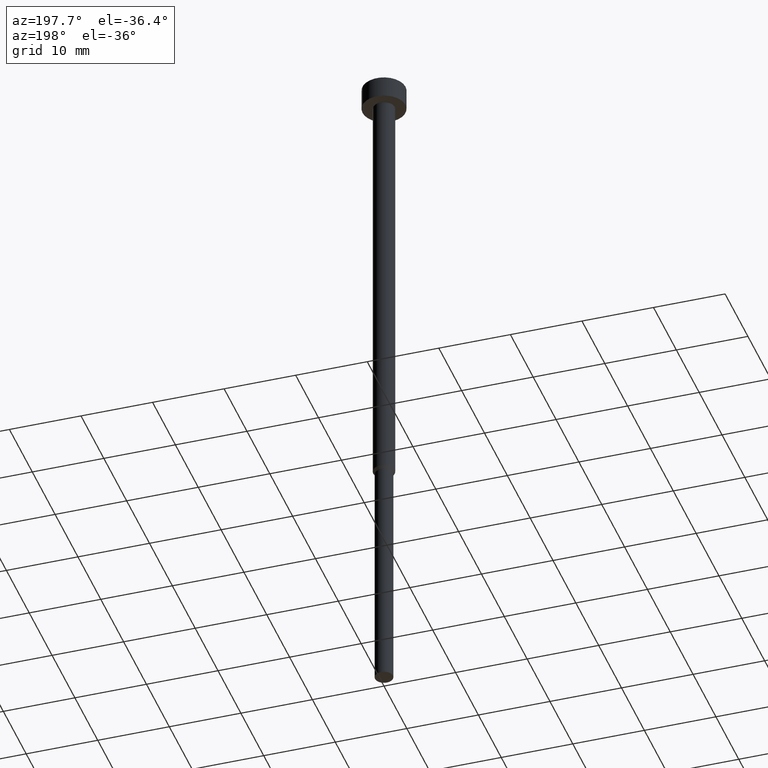
[diagram: clean part render]
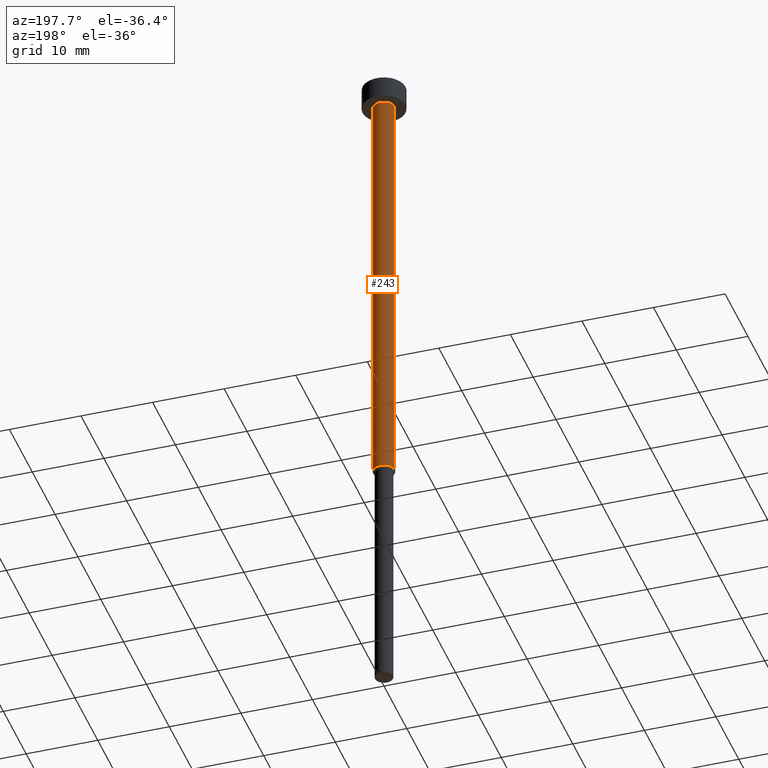
[diagram: same view with one face highlighted and labeled with its STEP entity id]
A machine part, auxiliary view. The second image highlights one B-rep face of the part: STEP entity #243.
In plain terms, the highlighted cylindrical surface (edge-blend (fillet) strip) has radius 1.5 mm, axis along (-0, -0, 1).
Its self-contained STEP definition (entity closure, byte-faithful):
#2 = DIRECTION ( 'NONE',  ( -0.000000000000000000, -0.000000000000000000, 1.000000000000000000 ) ) ;
#5 = CARTESIAN_POINT ( 'NONE',  ( -1.500000000000000000, 1.836970198721029934E-16, -3.000000000000000444 ) ) ;
#21 = EDGE_CURVE ( 'NONE', #190, #239, #353, .T. ) ;
#22 = CARTESIAN_POINT ( 'NONE',  ( 1.500000000000000000, 0.000000000000000000, -63.00000000000000000 ) ) ;
#37 = EDGE_CURVE ( 'NONE', #133, #190, #311, .T. ) ;
#49 = DIRECTION ( 'NONE',  ( -0.000000000000000000, -0.000000000000000000, 1.000000000000000000 ) ) ;
#57 = DIRECTION ( 'NONE',  ( -0.000000000000000000, -0.000000000000000000, 1.000000000000000000 ) ) ;
#62 = CYLINDRICAL_SURFACE ( 'NONE', #319, 1.500000000000000000 ) ;
#70 = CIRCLE ( 'NONE', #176, 1.500000000000000000 ) ;
#74 = AXIS2_PLACEMENT_3D ( 'NONE', #167, #139, #224 ) ;
#77 = CARTESIAN_POINT ( 'NONE',  ( -1.500000000000000000, 1.836970198721029934E-16, 0.000000000000000000 ) ) ;
#91 = DIRECTION ( 'NONE',  ( 1.000000000000000000, 0.000000000000000000, 0.000000000000000000 ) ) ;
#93 = EDGE_CURVE ( 'NONE', #133, #132, #171, .T. ) ;
#125 = VECTOR ( 'NONE', #326, 1000.000000000000000 ) ;
#132 = VERTEX_POINT ( 'NONE', #331 ) ;
#133 = VERTEX_POINT ( 'NONE', #22 ) ;
#136 = EDGE_LOOP ( 'NONE', ( #271, #266, #263, #318 ) ) ;
#139 = DIRECTION ( 'NONE',  ( -0.000000000000000000, -0.000000000000000000, 1.000000000000000000 ) ) ;
#167 = CARTESIAN_POINT ( 'NONE',  ( 0.000000000000000000, 0.000000000000000000, -63.00000000000000000 ) ) ;
#171 = LINE ( 'NONE', #252, #221 ) ;
#172 = CARTESIAN_POINT ( 'NONE',  ( 0.000000000000000000, 0.000000000000000000, 0.000000000000000000 ) ) ;
#175 = DIRECTION ( 'NONE',  ( 1.000000000000000000, 0.000000000000000000, 0.000000000000000000 ) ) ;
#176 = AXIS2_PLACEMENT_3D ( 'NONE', #229, #57, #91 ) ;
#190 = VERTEX_POINT ( 'NONE', #264 ) ;
#221 = VECTOR ( 'NONE', #49, 1000.000000000000000 ) ;
#224 = DIRECTION ( 'NONE',  ( 1.000000000000000000, 0.000000000000000000, 0.000000000000000000 ) ) ;
#229 = CARTESIAN_POINT ( 'NONE',  ( 0.000000000000000000, 0.000000000000000000, -3.000000000000000444 ) ) ;
#239 = VERTEX_POINT ( 'NONE', #5 ) ;
#243 = ADVANCED_FACE ( 'NONE', ( #341 ), #62, .T. ) ;
#252 = CARTESIAN_POINT ( 'NONE',  ( 1.500000000000000000, 0.000000000000000000, 0.000000000000000000 ) ) ;
#263 = ORIENTED_EDGE ( 'NONE', *, *, #286, .F. ) ;
#264 = CARTESIAN_POINT ( 'NONE',  ( -1.500000000000000000, 1.836970198721029934E-16, -63.00000000000000000 ) ) ;
#266 = ORIENTED_EDGE ( 'NONE', *, *, #21, .T. ) ;
#271 = ORIENTED_EDGE ( 'NONE', *, *, #37, .T. ) ;
#286 = EDGE_CURVE ( 'NONE', #132, #239, #70, .T. ) ;
#311 = CIRCLE ( 'NONE', #74, 1.500000000000000000 ) ;
#318 = ORIENTED_EDGE ( 'NONE', *, *, #93, .F. ) ;
#319 = AXIS2_PLACEMENT_3D ( 'NONE', #172, #2, #175 ) ;
#326 = DIRECTION ( 'NONE',  ( -0.000000000000000000, -0.000000000000000000, 1.000000000000000000 ) ) ;
#331 = CARTESIAN_POINT ( 'NONE',  ( 1.500000000000000000, 0.000000000000000000, -3.000000000000000444 ) ) ;
#341 = FACE_OUTER_BOUND ( 'NONE', #136, .T. ) ;
#353 = LINE ( 'NONE', #77, #125 ) ;